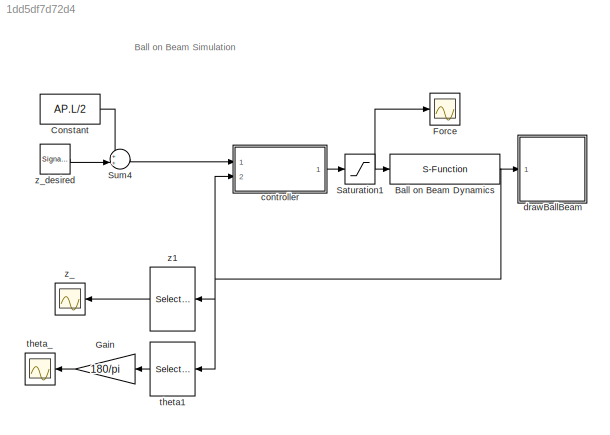
MODEL slx_1dd5df7d72d4
KIND model
CONFIG InitFcn = param
BLOCK [S-Function] Ball on Beam Dynamics
  EnableBusSupport = off
  FunctionName = ballbeam_dynamics
  Parameters = AP
  Ports = [1, 1]
BLOCK [Constant] Constant
  Value = AP.L/2
BLOCK [Scope] Force
  DataFormat = StructureWithTime
  Floating = off
  LimitDataPoints = off
  NumInputPorts = 1
  Ports = [1]
  SampleTime = 0
  ShowLegends = off
  TimeRange = 100
  YMax = 18
  YMin = 5
BLOCK [Gain] Gain
  Gain = 180/pi
  OutDataTypeStr = Inherit: Inherit via internal rule
  ParamDataTypeStr = Inherit: Inherit via internal rule
  SaturateOnIntegerOverflow = off
BLOCK [Saturate] Saturation1
  InputPortMap = u0
  LowerLimit = -AP.F_max
  Ports = [1, 1]
  UpperLimit = AP.F_max
BLOCK [Sum] Sum4
  IconShape = round
  InputSameDT = off
  Inputs = ++|
  OutDataTypeStr = Inherit: Inherit via internal rule
  Ports = [2, 1]
  SaturateOnIntegerOverflow = off
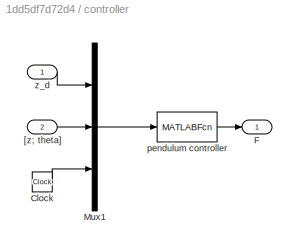
BLOCK [SubSystem] controller
  Ports = [2, 1]
  RequestExecContextInheritance = off
BLOCK [Clock] controller/Clock
BLOCK [Outport] controller/F
  IconDisplay = Port number
BLOCK [Mux] controller/Mux1
  DisplayOption = bar
  Inputs = 3
  Ports = [3, 1]
BLOCK [Inport] controller/[z; theta]
  IconDisplay = Port number
  Port = 2
BLOCK [MATLABFcn] controller/pendulum controller
  MATLABFcn = ballbeam_ctrlss(u,AP)
  OutputDimensions = 1
  Ports = [1, 1]
  SampleTime = P.Ts
BLOCK [Inport] controller/z_d
  IconDisplay = Port number
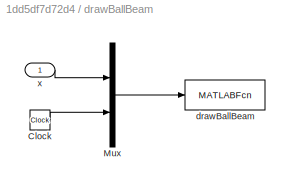
BLOCK [SubSystem] drawBallBeam
  Ports = [1]
  RequestExecContextInheritance = off
BLOCK [Clock] drawBallBeam/Clock
BLOCK [Mux] drawBallBeam/Mux
  DisplayOption = bar
  Inputs = 2
  Ports = [2, 1]
BLOCK [MATLABFcn] drawBallBeam/drawBallBeam
  MATLABFcn = drawBallBeam(u,L,R)
  OutputDimensions = 0
  Ports = [1]
  SampleTime = 0.1
BLOCK [Inport] drawBallBeam/x
  IconDisplay = Port number
BLOCK [Selector] theta1
  Indices = [2]
  InputPortWidth = 4
  Ports = [1, 1]
BLOCK [Scope] theta_
  DataFormat = StructureWithTime
  Floating = off
  LimitDataPoints = off
  NumInputPorts = 1
  Ports = [1]
  SampleTime = 0
  SaveName = ScopeData1
  ShowLegends = off
  TimeRange = 100
  YMax = 6.5
  YMin = -3
BLOCK [Selector] z1
  Indices = [1]
  InputPortWidth = 4
  Ports = [1, 1]
BLOCK [Scope] z_
  DataFormat = StructureWithTime
  Floating = off
  LimitDataPoints = off
  NumInputPorts = 1
  Ports = [1]
  SampleTime = 0
  SaveName = ScopeData2
  ShowLegends = off
  TimeRange = 100
  YMax = 0.475
  YMin = 0.025
BLOCK [SignalGenerator] z_desired
  Amplitude = 0.125
  Frequency = .02
  Ports = [0, 1]
  WaveForm = square
ANNOTATION (root): Ball on Beam Simulation
NET Ball on Beam Dynamics:1 -> controller:2, drawBallBeam:1, theta1:1, z1:1
LINE Constant:1 -> Sum4:1
LINE Gain:1 -> theta_:1
NET Saturation1:1 -> Ball on Beam Dynamics:1, Force:1
LINE Sum4:1 -> controller:1
LINE controller/Clock:1 -> controller/Mux1:3
LINE controller/Mux1:1 -> controller/pendulum controller:1
LINE controller/[z; theta]:1 -> controller/Mux1:2
LINE controller/pendulum controller:1 -> controller/F:1
LINE controller/z_d:1 -> controller/Mux1:1
LINE controller:1 -> Saturation1:1
LINE drawBallBeam/Clock:1 -> drawBallBeam/Mux:2
LINE drawBallBeam/Mux:1 -> drawBallBeam/drawBallBeam:1
LINE drawBallBeam/x:1 -> drawBallBeam/Mux:1
LINE theta1:1 -> Gain:1
LINE z1:1 -> z_:1
LINE z_desired:1 -> Sum4:2
note: NET lines group one-source signal fan-out (src -> all destinations, sorted); 1:1 wires keep LINE
